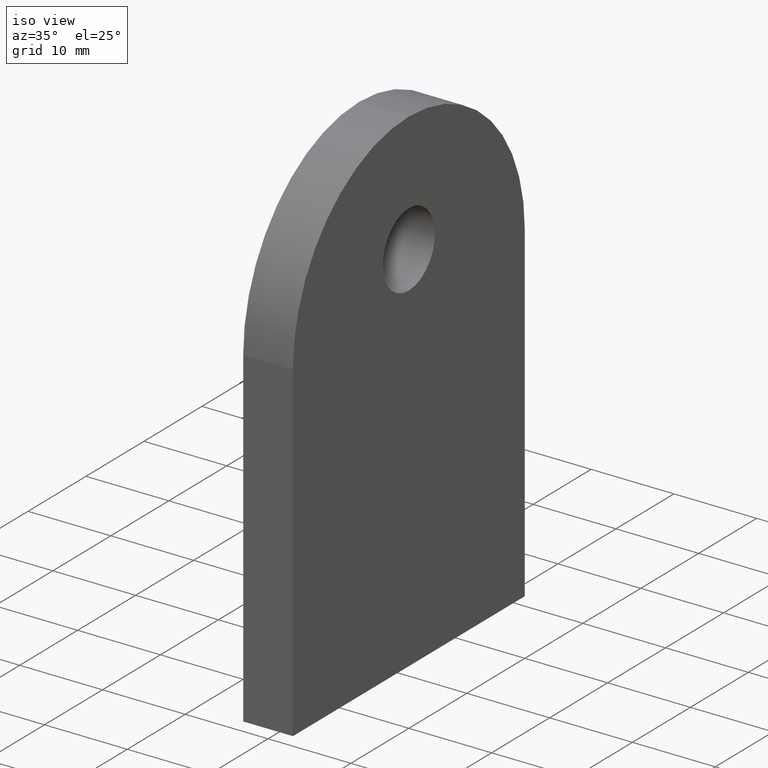
[diagram: clean part render]
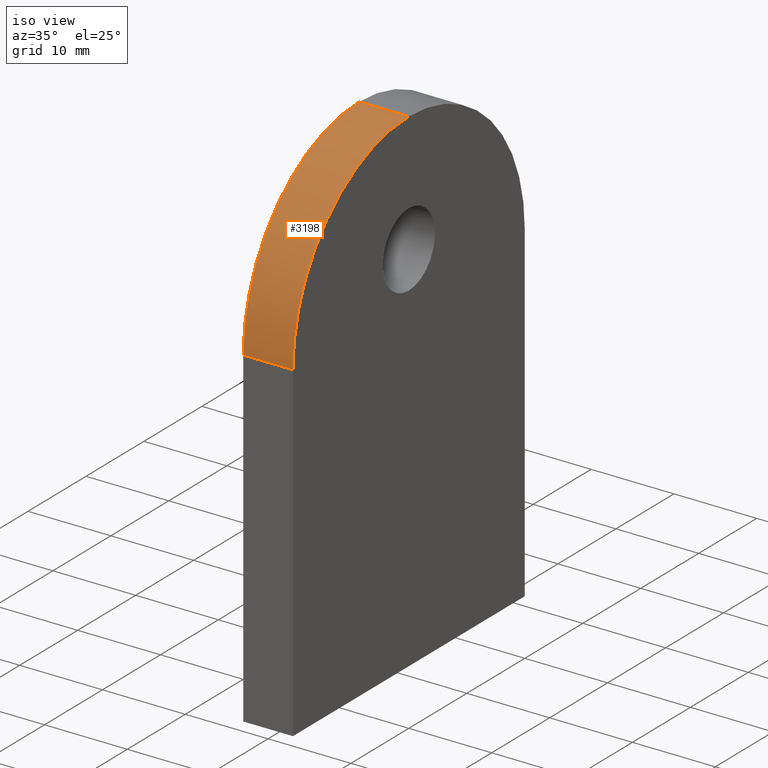
[diagram: same view with one face highlighted and labeled with its STEP entity id]
A machine part, iso view. The second image highlights one B-rep face of the part: STEP entity #3198.
In plain terms, the highlighted cylindrical surface (partial cylindrical patch) has radius 20 mm, axis along (-1, -0, -0).
Its self-contained STEP definition (entity closure, byte-faithful):
#463 = EDGE_CURVE ( 'NONE', #6350, #9823, #10210, .T. ) ;
#510 = LINE ( 'NONE', #2291, #779 ) ;
#722 = CARTESIAN_POINT ( 'NONE',  ( 3.000000000000000000, -20.00000000000000400, 39.99999999999998600 ) ) ;
#779 = VECTOR ( 'NONE', #6481, 1000.000000000000000 ) ;
#861 = CARTESIAN_POINT ( 'NONE',  ( 3.000000000000000000, 0.0000000000000000000, 59.99999999999999300 ) ) ;
#1242 = DIRECTION ( 'NONE',  ( 0.0000000000000000000, 0.0000000000000000000, 1.000000000000000000 ) ) ;
#1393 = CARTESIAN_POINT ( 'NONE',  ( 3.000000000000000000, -20.00000000000000400, 39.99999999999998600 ) ) ;
#1800 = CARTESIAN_POINT ( 'NONE',  ( -3.000000000000000000, 0.0000000000000000000, 39.99999999999998600 ) ) ;
#1966 = CARTESIAN_POINT ( 'NONE',  ( -3.000000000000000000, -20.00000000000000400, 39.99999999999998600 ) ) ;
#2002 = EDGE_LOOP ( 'NONE', ( #4905, #8810, #6883, #6244 ) ) ;
#2291 = CARTESIAN_POINT ( 'NONE',  ( 3.000000000000000000, 0.0000000000000000000, 59.99999999999999300 ) ) ;
#2537 = DIRECTION ( 'NONE',  ( 0.0000000000000000000, 0.0000000000000000000, 1.000000000000000000 ) ) ;
#3198 = ADVANCED_FACE ( 'NONE', ( #9116 ), #5455, .T. ) ;
#3571 = EDGE_CURVE ( 'NONE', #10103, #4094, #4248, .T. ) ;
#4094 = VERTEX_POINT ( 'NONE', #861 ) ;
#4109 = CARTESIAN_POINT ( 'NONE',  ( -3.000000000000000000, 0.0000000000000000000, 59.99999999999999300 ) ) ;
#4248 = CIRCLE ( 'NONE', #5968, 20.00000000000000400 ) ;
#4905 = ORIENTED_EDGE ( 'NONE', *, *, #3571, .T. ) ;
#5010 = VECTOR ( 'NONE', #7160, 1000.000000000000000 ) ;
#5165 = EDGE_CURVE ( 'NONE', #4094, #9823, #510, .T. ) ;
#5331 = DIRECTION ( 'NONE',  ( 0.0000000000000000000, 0.0000000000000000000, 1.000000000000000000 ) ) ;
#5455 = CYLINDRICAL_SURFACE ( 'NONE', #7352, 20.00000000000000400 ) ;
#5465 = DIRECTION ( 'NONE',  ( -1.000000000000000000, -0.0000000000000000000, -0.0000000000000000000 ) ) ;
#5968 = AXIS2_PLACEMENT_3D ( 'NONE', #10450, #7014, #5331 ) ;
#6244 = ORIENTED_EDGE ( 'NONE', *, *, #6509, .F. ) ;
#6350 = VERTEX_POINT ( 'NONE', #1966 ) ;
#6481 = DIRECTION ( 'NONE',  ( -1.000000000000000000, -0.0000000000000000000, -0.0000000000000000000 ) ) ;
#6509 = EDGE_CURVE ( 'NONE', #10103, #6350, #7230, .T. ) ;
#6883 = ORIENTED_EDGE ( 'NONE', *, *, #463, .F. ) ;
#7014 = DIRECTION ( 'NONE',  ( -1.000000000000000000, -0.0000000000000000000, 0.0000000000000000000 ) ) ;
#7160 = DIRECTION ( 'NONE',  ( -1.000000000000000000, -0.0000000000000000000, -0.0000000000000000000 ) ) ;
#7230 = LINE ( 'NONE', #1393, #5010 ) ;
#7352 = AXIS2_PLACEMENT_3D ( 'NONE', #8065, #5465, #1242 ) ;
#7627 = AXIS2_PLACEMENT_3D ( 'NONE', #1800, #9431, #2537 ) ;
#8065 = CARTESIAN_POINT ( 'NONE',  ( 3.000000000000000000, 0.0000000000000000000, 39.99999999999998600 ) ) ;
#8810 = ORIENTED_EDGE ( 'NONE', *, *, #5165, .T. ) ;
#9116 = FACE_OUTER_BOUND ( 'NONE', #2002, .T. ) ;
#9431 = DIRECTION ( 'NONE',  ( -1.000000000000000000, -0.0000000000000000000, 0.0000000000000000000 ) ) ;
#9823 = VERTEX_POINT ( 'NONE', #4109 ) ;
#10103 = VERTEX_POINT ( 'NONE', #722 ) ;
#10210 = CIRCLE ( 'NONE', #7627, 20.00000000000000400 ) ;
#10450 = CARTESIAN_POINT ( 'NONE',  ( 3.000000000000000000, 0.0000000000000000000, 39.99999999999998600 ) ) ;